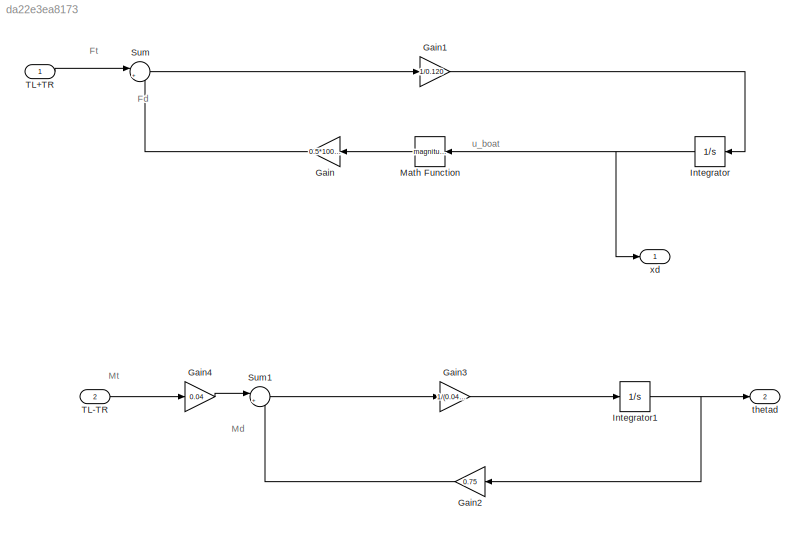
MODEL slx_da22e3ea8173
KIND model
CONFIG AbsTol = auto
CONFIG FixedStep = auto
CONFIG MaxStep = auto
CONFIG MinStep = auto
CONFIG RelTol = 1e-3
CONFIG SampleTimeConstraint = Unconstrained
CONFIG Solver = ode45
CONFIG SolverMode = Auto
CONFIG SolverName = ode45
CONFIG StartTime = 0.0
CONFIG StopTime = 10.0
BLOCK [Gain] Gain
  Gain = 0.5*1000*(0.05^2)*0.6
  OutDataTypeStr = Inherit: Inherit via internal rule
  ParamDataTypeStr = Inherit: Inherit via internal rule
  SaturateOnIntegerOverflow = off
BLOCK [Gain] Gain1
  Gain = 1/0.120
  OutDataTypeStr = Inherit: Inherit via internal rule
  ParamDataTypeStr = Inherit: Inherit via internal rule
  SaturateOnIntegerOverflow = off
BLOCK [Gain] Gain2
  Gain = 0.75
  OutDataTypeStr = Inherit: Inherit via internal rule
  ParamDataTypeStr = Inherit: Inherit via internal rule
  SaturateOnIntegerOverflow = off
BLOCK [Gain] Gain3
  Gain = 1/(0.04*0.80)
  OutDataTypeStr = Inherit: Inherit via internal rule
  ParamDataTypeStr = Inherit: Inherit via internal rule
  SaturateOnIntegerOverflow = off
BLOCK [Gain] Gain4
  Gain = 0.04
  OutDataTypeStr = Inherit: Inherit via internal rule
  ParamDataTypeStr = Inherit: Inherit via internal rule
  SaturateOnIntegerOverflow = off
BLOCK [Integrator] Integrator
  ContinuousStateAttributes = 'u_boat'
  InitialCondition = 1.0
  Ports = [1, 1]
BLOCK [Integrator] Integrator1
  ContinuousStateAttributes = 'theta_d'
  InitialCondition = 1.0
  Ports = [1, 1]
BLOCK [Math] Math Function
  Operator = magnitude^2
  Ports = [1, 1]
BLOCK [Sum] Sum
  IconShape = round
  InputSameDT = off
  Inputs = |+-
  OutDataTypeStr = Inherit: Inherit via internal rule
  Ports = [2, 1]
  SaturateOnIntegerOverflow = off
BLOCK [Sum] Sum1
  IconShape = round
  InputSameDT = off
  Inputs = |+-
  OutDataTypeStr = Inherit: Inherit via internal rule
  Ports = [2, 1]
  SaturateOnIntegerOverflow = off
BLOCK [Inport] TL+TR
  IconDisplay = Port number
BLOCK [Inport] TL-TR
  IconDisplay = Port number
  Port = 2
BLOCK [Outport] thetad
  IconDisplay = Port number
  Port = 2
BLOCK [Outport] xd
  IconDisplay = Port number
ANNOTATION (root): Fd
ANNOTATION (root): Ft
ANNOTATION (root): Md
ANNOTATION (root): Mt
ANNOTATION (root): u_boat
LINE Gain1:1 -> Integrator:1
LINE Gain2:1 -> Sum1:2
LINE Gain3:1 -> Integrator1:1
LINE Gain4:1 -> Sum1:1
LINE Gain:1 -> Sum:2
NET Integrator1:1 -> Gain2:1, thetad:1
NET Integrator:1 -> Math Function:1, xd:1
LINE Math Function:1 -> Gain:1
LINE Sum1:1 -> Gain3:1
LINE Sum:1 -> Gain1:1
LINE TL+TR:1 -> Sum:1
LINE TL-TR:1 -> Gain4:1
note: NET lines group one-source signal fan-out (src -> all destinations, sorted); 1:1 wires keep LINE
